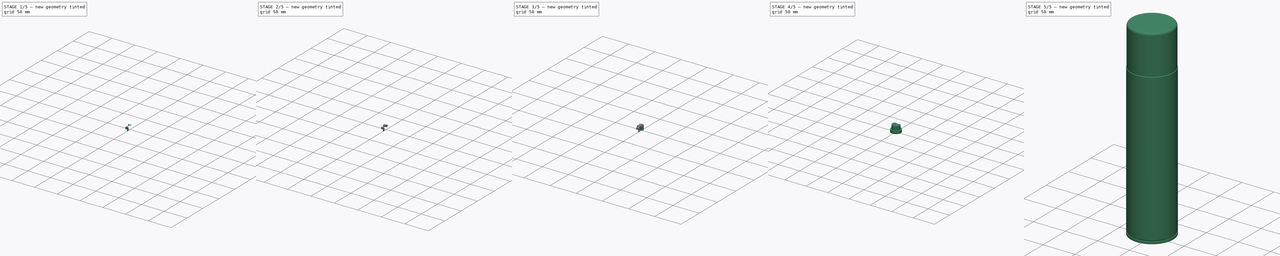
[diagram: build sequence overview — one tinted view per stage of 5, left to right]
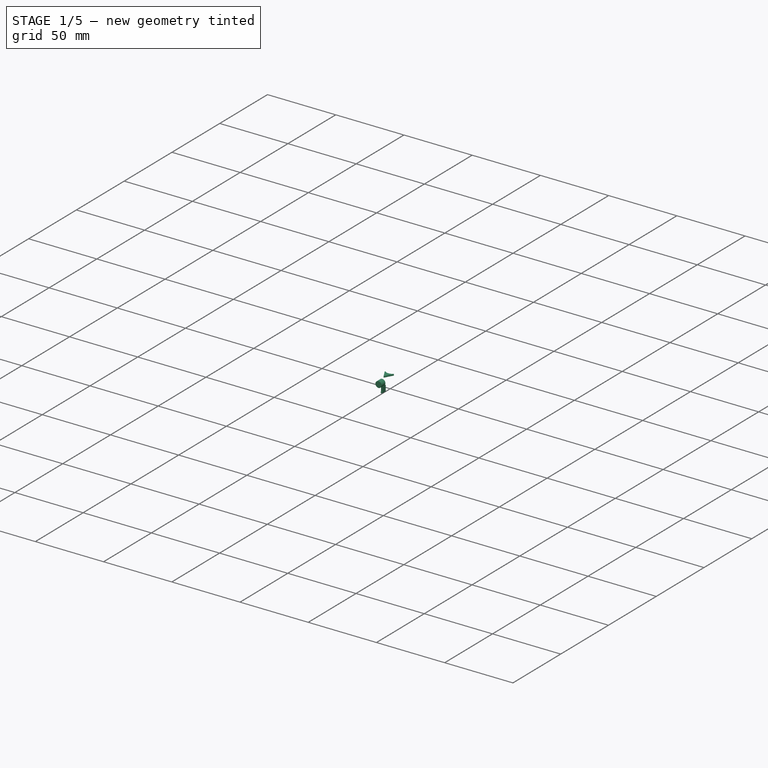
[diagram: stage 1 of 5 — iso view after this stage's code; geometry added in this stage tinted green]
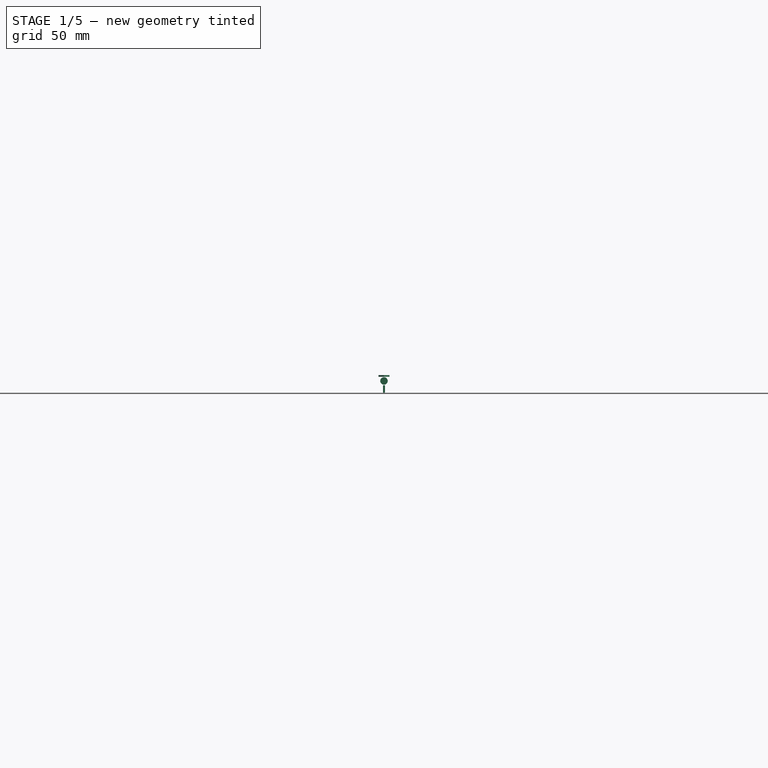
[diagram: stage 1 of 5 — front view after this stage's code; geometry added in this stage tinted green]
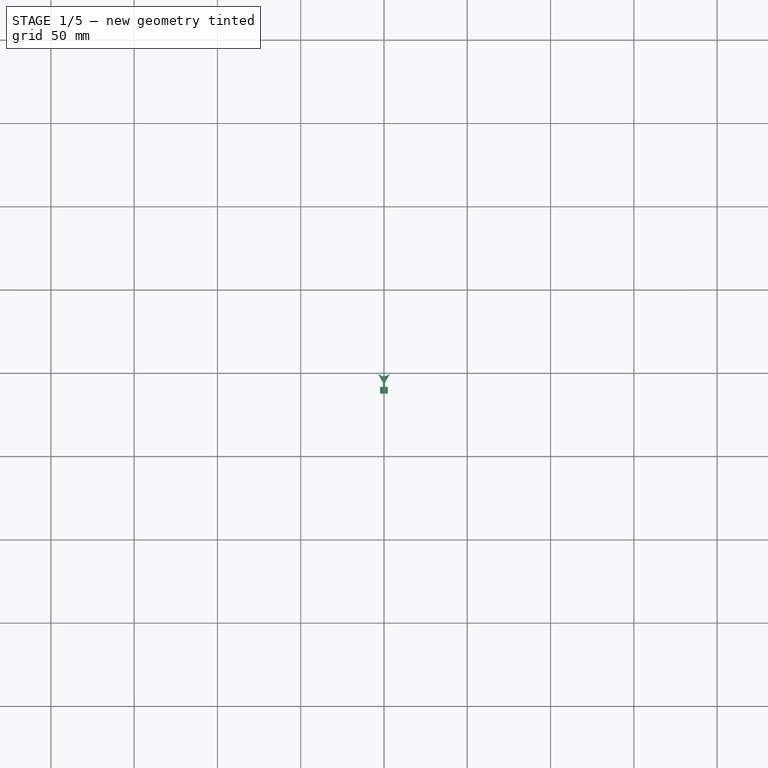
[diagram: stage 1 of 5 — top view after this stage's code; geometry added in this stage tinted green]
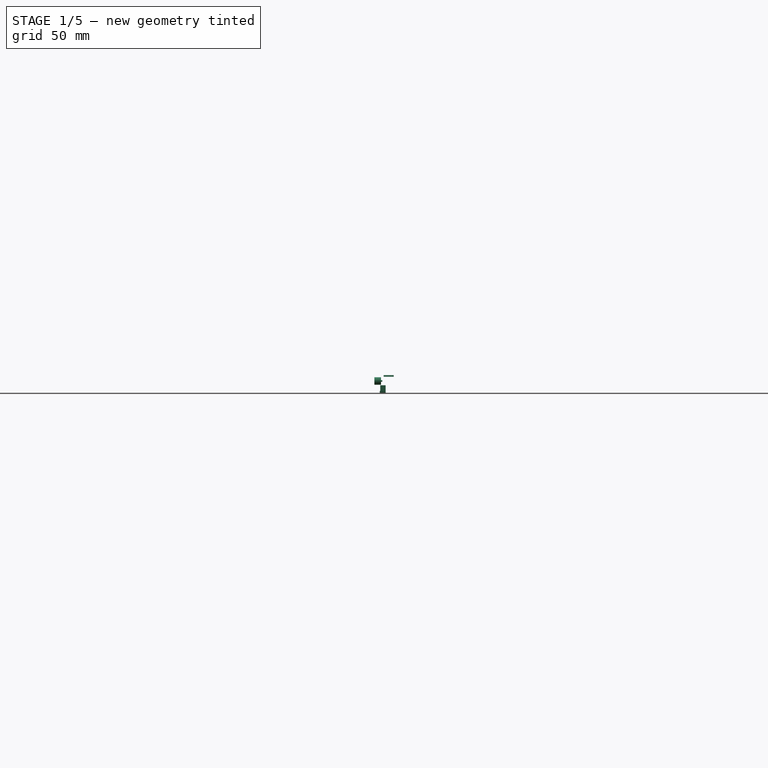
[diagram: stage 1 of 5 — right view after this stage's code; geometry added in this stage tinted green]
FCSTD DOCUMENT  (FreeCAD 0.16R6710 (Git))
Label: lac-can-600ml
License: All rights reserved
LicenseURL: http://en.wikipedia.org/wiki/All_rights_reserved
objects: Sketcher::SketchObject×7, Part::FeaturePython×7, Part::Cut×5, PartDesign::Revolution×4, Part::Cylinder×3, PartDesign::Pad×3, Part::Thickness×2, Part::MultiCommon×2, Part::MultiFuse×2, App::DocumentObjectGroup×2, Part::Box×1, Part::Fillet×1
note: 44 computed .brp shape members not serialized (recipe doc carries the construction recipe); baked Part::Feature solids carry a one-line shape summary decoded from their .brp

FEATURE [Sketcher::SketchObject] Sketch001
  Placement = pos=(0,0,0) rot=(1,0,0;1.5708rad)
  sketch-geometry (6):
    g0: LineSegment StartX=11.325 StartY=0 StartZ=0 EndX=11.325 EndY=6 EndZ=0
    g1: LineSegment StartX=11.325 StartY=6 StartZ=0 EndX=8.725 EndY=6 EndZ=0
    g2: LineSegment StartX=8.725 StartY=6 StartZ=0 EndX=8.725 EndY=15.5 EndZ=0
    g3: LineSegment StartX=8.725 StartY=15.5 StartZ=0 EndX=0 EndY=15.5 EndZ=0
    g4: LineSegment StartX=11.325 StartY=0 StartZ=0 EndX=0 EndY=0 EndZ=0
    g5: LineSegment StartX=0 StartY=0 StartZ=0 EndX=0 EndY=15.5 EndZ=0
  constraints (19):
    c: PointOnObject(g0,g-1)
    c: Vertical(g0)
    c: Coincident(g0,g1)
    c: Horizontal(g1)
    c: Coincident(g1,g2)
    c: Vertical(g2)
    c: Coincident(g2,g3)
    c: Horizontal(g3)
    c: PointOnObject(g3,g-2)
    c: DistanceX(g-1,g0) = 11.325
    c: DistanceX(g3,g3) = 8.725
    c: DistanceY(g0,g0) = 6
    c: DistanceY(g2,g2) = 9.5
    c: Coincident(g0,g4)
    c: PointOnObject(g4,g-1)
    c: Coincident(g5,g3)
    c: Vertical(g5)
    c: Coincident(g5,g-1)
    c: Coincident(g4,g-1)
FEATURE [PartDesign::Revolution] Revolution001
  Angle = 360
  Axis = (0,0,1)
  Base = (0,0,0)
  Placement = pos=(0,0,0) rot=(1,0,0;1.5708rad)
  ReferenceAxis = -> Sketch001 [V_Axis]
  Reversed = true
  Sketch = -> Sketch001
FEATURE [Sketcher::SketchObject] Sketch004
  Placement = pos=(0,-9,17.75) rot=(-1,0,0;1.5708rad)
  sketch-geometry (4):
    g0: ArcOfCircle CenterX=0 CenterY=12.3 CenterZ=0 NormalX=0 NormalY=0 NormalZ=1 Radius=0.625 StartAngle=1.51231e-05 EndAngle=3.14158
    g1: LineSegment StartX=0.625 StartY=12.3 StartZ=0 EndX=0.625 EndY=8.3 EndZ=0
    g2: LineSegment StartX=0.625 StartY=8.3 StartZ=0 EndX=-0.625 EndY=8.3 EndZ=0
    g3: LineSegment StartX=-0.625 StartY=8.3 StartZ=0 EndX=-0.625 EndY=12.3 EndZ=0
  constraints (13):
    c: PointOnObject(g0,g-2)
    c: Coincident(g1,g2)
    c: Coincident(g2,g3)
    c: Horizontal(g2)
    c: Vertical(g1)
    c: Vertical(g3)
    c: Coincident(g0,g3)
    c: Coincident(g0,g1)
    c: DistanceY(g-1,g1) = 8.3
    c: Equal(g3,g1)
    c: Tangent(g3,g0)
    c: Radius(g0) = 0.625
    c: DistanceY(g3,g3) = 4
FEATURE [PartDesign::Pad] Pad001
  Length = 3.5
  Length2 = 100
  Placement = pos=(0,-9,17.75) rot=(-1,0,0;1.5708rad)
  Sketch = -> Sketch004
  Type = 0
FEATURE [Part::FeaturePython] Clone003  label="Clone of Revolution002"  # Draft clone (typed FeaturePython)
  Objects = -> [Revolution001]
  Placement = pos=(0,0,0) rot=(1,0,0;1.5708rad)
  Scale = (1,1,1)
FEATURE [Part::MultiCommon] Common001
  Shapes = -> [Clone003,Pad001]
FEATURE [Sketcher::SketchObject] Sketch005
  Placement = pos=(0,0,15.5) rot=(0,0,1;0rad)
  sketch-geometry (6):
    g0: ArcOfCircle CenterX=0 CenterY=-6.5 CenterZ=0 NormalX=0 NormalY=0 NormalZ=1 Radius=0.2 StartAngle=3.65064 EndAngle=5.77413
    g1: LineSegment StartX=0.174641 StartY=-6.59747 StartZ=0 EndX=3.3 EndY=-0.99747 EndZ=0
    g2: LineSegment StartX=-0.174641 StartY=-6.59747 StartZ=0 EndX=-3.3 EndY=-0.99747 EndZ=0
    g3: ArcOfCircle CenterX=-3.12536 CenterY=-0.900002 CenterZ=0 NormalX=0 NormalY=0 NormalZ=1 Radius=0.2 StartAngle=0.858135 EndAngle=3.65063
    g4: ArcOfCircle CenterX=3.12536 CenterY=-0.900002 CenterZ=0 NormalX=0 NormalY=0 NormalZ=1 Radius=0.2 StartAngle=5.77414 EndAngle=8.56664
    g5: ArcOfCircle CenterX=0 CenterY=2.71661 CenterZ=0 NormalX=0 NormalY=0 NormalZ=1 Radius=4.57993 StartAngle=3.99973 EndAngle=5.42505
  constraints (22):
    c: Coincident(g3,g2)
    c: Coincident(g4,g1)
    c: Equal(g4,g3)
    c: Equal(g3,g0)
    c: Tangent(g4,g1)
    c: Tangent(g2,g3)
    c: Tangent(g2,g0)
    c: Tangent(g0,g1)
    c: PointOnObject(g5,g-2)
    c: Coincident(g5,g3)
    c: Coincident(g5,g4)
    c: Tangent(g5,g4)
    c: Tangent(g5,g3)
    c: Coincident(g2,g0)
    c: Coincident(g1,g0)
    c: Radius(g0) = 0.2
    c: PointOnObject(g0,g-2)
    c: DistanceX(g2,g1) = 6.6
    c: DistanceY(g1,g1) = 5.6
    c: Symmetric(g3,g4,g-2)
    c: Symmetric(g0,g0,g-2)
    c: DistanceY(g0,g-1) = 6.5
FEATURE [PartDesign::Pad] Pad002
  Length = 1
  Length2 = 100
  Placement = pos=(0,0,15.5) rot=(0,0,1;0rad)
  Reversed = true
  Sketch = -> Sketch005
  Type = 0
FEATURE [Sketcher::SketchObject] Sketch006
  Placement = pos=(0,-12.25,12) rot=(0.57735,0.57735,0.57735;2.0944rad)
  sketch-geometry (10):
    g0: LineSegment StartX=0 StartY=2.25 StartZ=0 EndX=4 EndY=2.25 EndZ=0
    g1: LineSegment StartX=4 StartY=2.25 StartZ=0 EndX=4 EndY=2 EndZ=0
    g2: LineSegment StartX=4 StartY=2 StartZ=0 EndX=3.5 EndY=2 EndZ=0
    g3: LineSegment StartX=3.5 StartY=2 StartZ=0 EndX=3.5 EndY=1.5 EndZ=0
    g4: LineSegment StartX=3.5 StartY=1.5 StartZ=0 EndX=3.75 EndY=1.5 EndZ=0
    g5: LineSegment StartX=3.75 StartY=1.5 StartZ=0 EndX=3.75 EndY=0.5 EndZ=0
    g6: LineSegment StartX=3.75 StartY=0.5 StartZ=0 EndX=4.75 EndY=0.5 EndZ=0
    g7: LineSegment StartX=4.75 StartY=0.5 StartZ=0 EndX=4.75 EndY=0 EndZ=0
    g8: LineSegment StartX=0 StartY=2.25 StartZ=0 EndX=0 EndY=0 EndZ=0
    g9: LineSegment StartX=0 StartY=0 StartZ=0 EndX=4.75 EndY=0 EndZ=0
  constraints (29):
    c: PointOnObject(g0,g-2)
    c: Horizontal(g0)
    c: Coincident(g0,g1)
    c: Coincident(g1,g2)
    c: Horizontal(g2)
    c: Coincident(g2,g3)
    c: Vertical(g3)
    c: Coincident(g3,g4)
    c: Coincident(g4,g5)
    c: Coincident(g5,g6)
    c: Horizontal(g6)
    c: Coincident(g6,g7)
    c: PointOnObject(g7,g-1)
    c: Vertical(g7)
    c: Vertical(g1)
    c: DistanceX(g0,g0) = 4
    c: DistanceX(g2,g2) = 0.5
    c: DistanceY(g3,g3) = 0.5
    c: Horizontal(g4)
    c: Vertical(g5)
    c: DistanceX(g4,g4) = 0.25
    c: DistanceY(g5,g5) = 1
    c: DistanceY(g1,g1) = 0.25
    c: DistanceY(g-1,g0) = 2.25
    c: DistanceX(g6,g6) = 1
    c: Coincident(g0,g8)
    c: Coincident(g8,g-1)
    c: Coincident(g8,g9)
    c: Coincident(g9,g7)
FEATURE [PartDesign::Revolution] Revolution003
  Angle = 360
  Axis = (0,1,0)
  Base = (0,-12.25,12)
  Placement = pos=(0,-12.25,12) rot=(0.57735,0.57735,0.57735;2.0944rad)
  ReferenceAxis = -> Sketch006 [H_Axis]
  Sketch = -> Sketch006
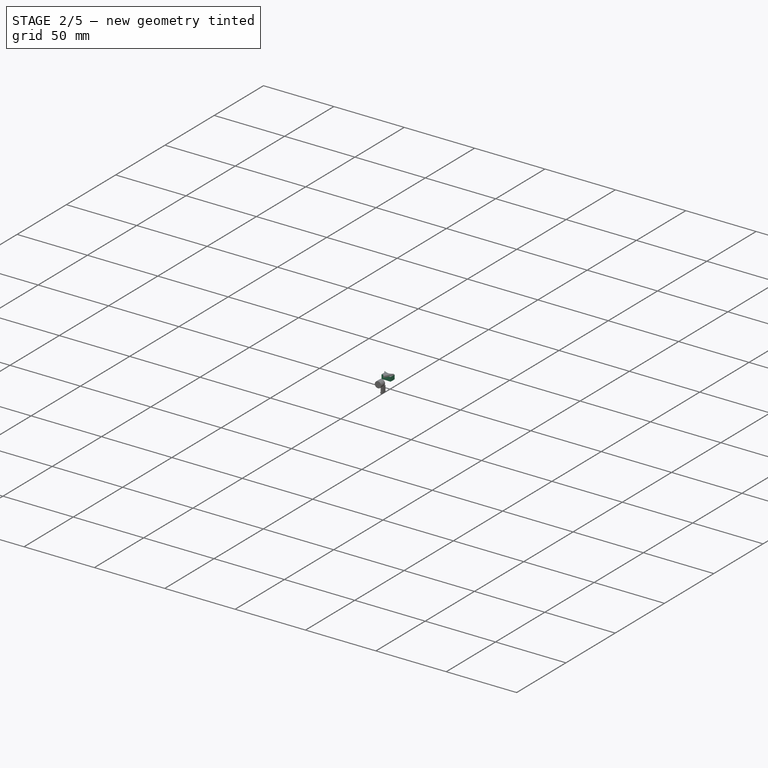
[diagram: stage 2 of 5 — iso view after this stage's code; geometry added in this stage tinted green]
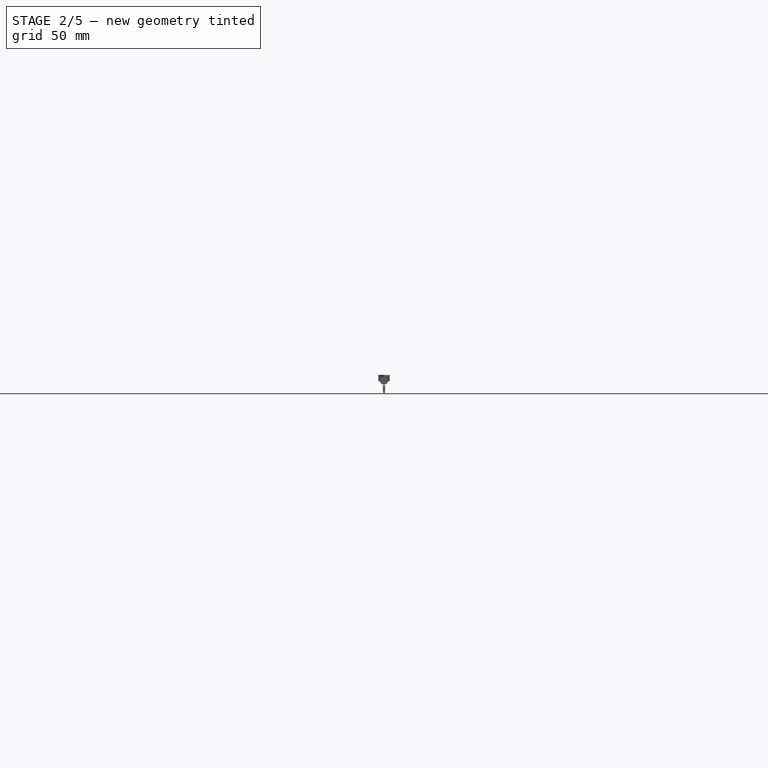
[diagram: stage 2 of 5 — front view after this stage's code; geometry added in this stage tinted green]
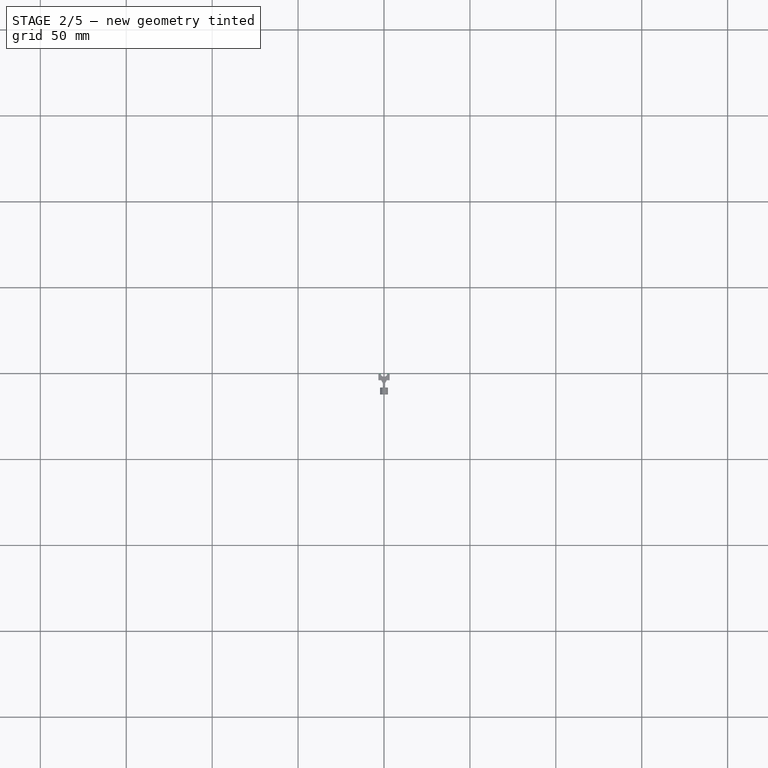
[diagram: stage 2 of 5 — top view after this stage's code; geometry added in this stage tinted green]
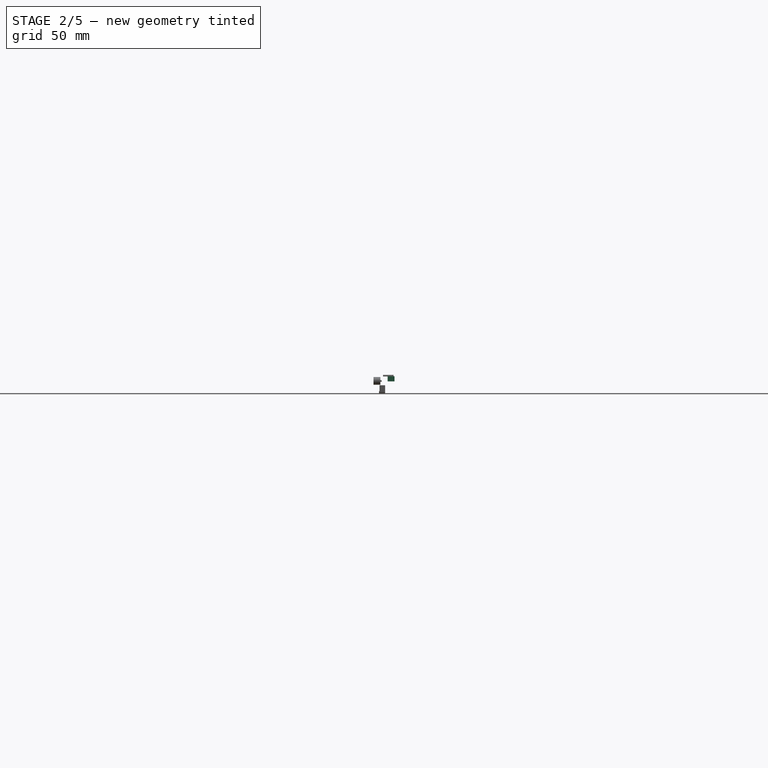
[diagram: stage 2 of 5 — right view after this stage's code; geometry added in this stage tinted green]
FEATURE [Part::Cylinder] Cylinder
  Angle = 360
  Height = 25
  Placement = pos=(0,14,22) rot=(1,0,0;1.39626rad)
  Radius = 10
FEATURE [Part::Box] Box  label="Cube"
  Height = 3
  Length = 6.5
  Placement = pos=(-3.25,-4,11.7) rot=(0,0,1;0rad)
  Width = 4
FEATURE [Part::Cylinder] Cylinder001
  Angle = 360
  Height = 10
  Placement = pos=(0,0,7) rot=(0,0,1;0rad)
  Radius = 2
FEATURE [Part::FeaturePython] Clone002  label="Clone of Cylinder001"  # Draft clone (typed FeaturePython)
  Objects = -> [Cylinder]
  Placement = pos=(0,14,22) rot=(1,0,0;1.39626rad)
  Scale = (1,1,1)
FEATURE [Part::MultiFuse] Fusion
  Shapes = -> [Clone002,Cylinder001]
FEATURE [Part::Cut] Cut002
  Base = -> Box
  Tool = -> Fusion
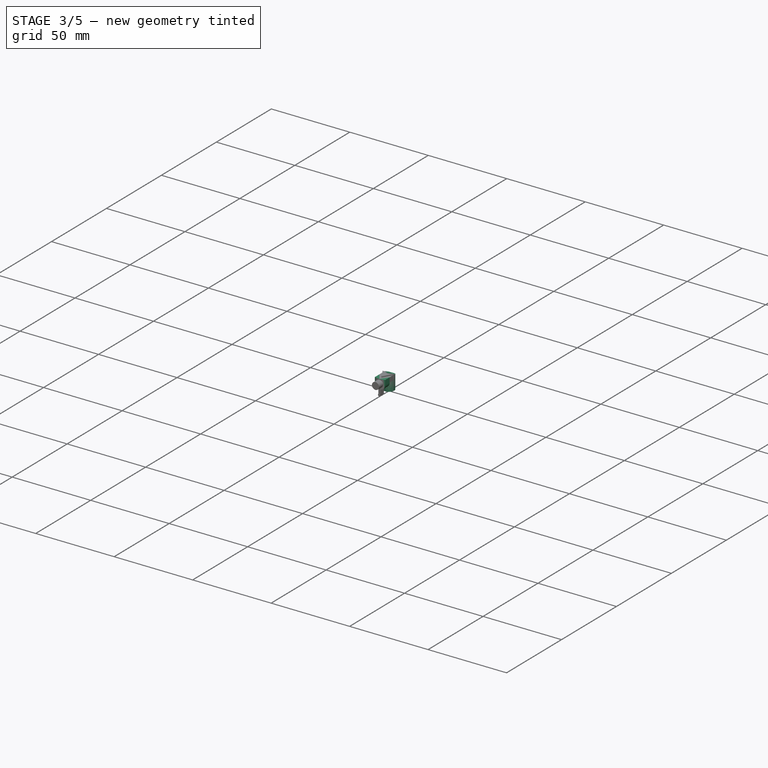
[diagram: stage 3 of 5 — iso view after this stage's code; geometry added in this stage tinted green]
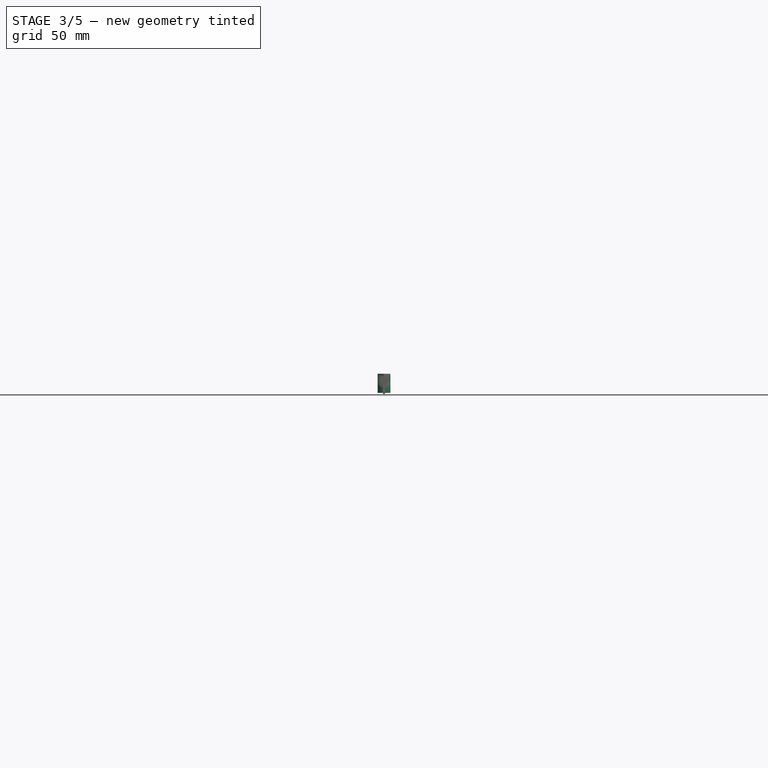
[diagram: stage 3 of 5 — front view after this stage's code; geometry added in this stage tinted green]
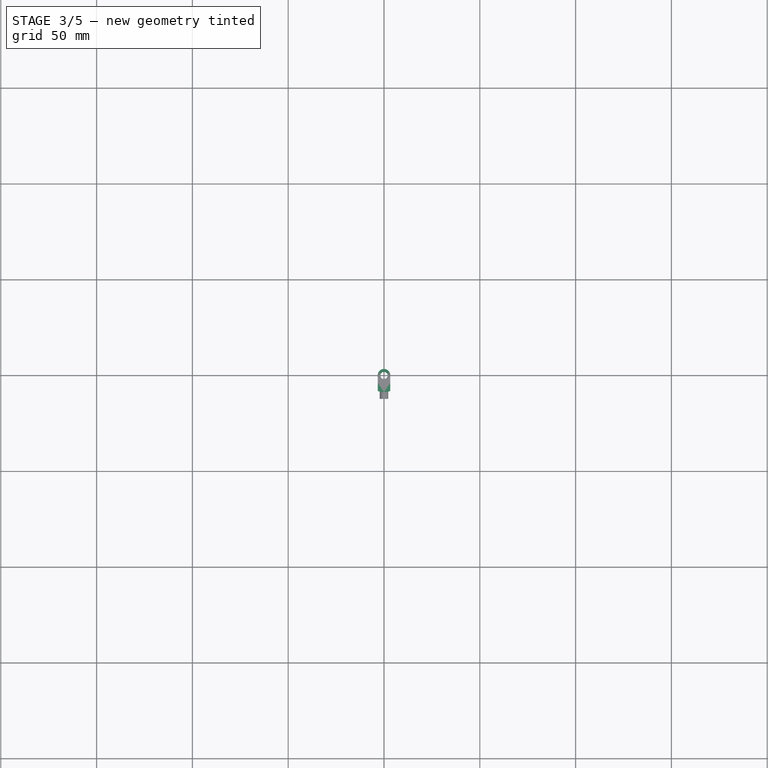
[diagram: stage 3 of 5 — top view after this stage's code; geometry added in this stage tinted green]
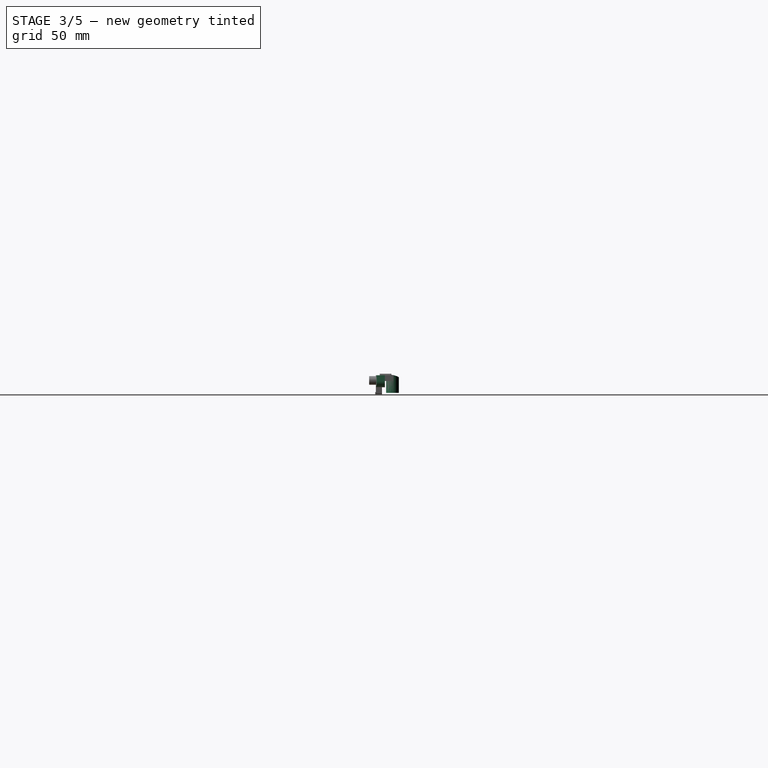
[diagram: stage 3 of 5 — right view after this stage's code; geometry added in this stage tinted green]
FEATURE [Sketcher::SketchObject] Sketch002
  Placement = pos=(0,0,0) rot=(1,0,0;1.5708rad)
  sketch-geometry (4):
    g0: LineSegment StartX=3.325 StartY=15.5 StartZ=0 EndX=3.325 EndY=5.5 EndZ=0
    g1: LineSegment StartX=3.325 StartY=5.5 StartZ=0 EndX=1.925 EndY=7.49941 EndZ=0
    g2: LineSegment StartX=1.925 StartY=7.49941 StartZ=0 EndX=1.925 EndY=15.5 EndZ=0
    g3: LineSegment StartX=1.925 StartY=15.5 StartZ=0 EndX=3.325 EndY=15.5 EndZ=0
  constraints (12):
    c: Vertical(g0)
    c: Coincident(g0,g1)
    c: Coincident(g1,g2)
    c: Vertical(g2)
    c: Coincident(g2,g3)
    c: Coincident(g0,g3)
    c: Angle(g0,g1) = 0.610865
    c: DistanceX(g3,g3) = 1.4
    c: DistanceX(g-1,g1) = 1.925
    c: Horizontal(g3)
    c: DistanceY(g-1,g2) = 15.5
    c: DistanceY(g-1,g0) = 5.5
FEATURE [PartDesign::Revolution] Revolution002
  Angle = 360
  Axis = (0,0,1)
  Base = (0,0,0)
  Placement = pos=(0,0,0) rot=(1,0,0;1.5708rad)
  ReferenceAxis = -> Sketch002 [V_Axis]
  Reversed = true
  Sketch = -> Sketch002
FEATURE [Part::FeaturePython] Clone  label="Clone of Cylinder"  # Draft clone (typed FeaturePython)
  Objects = -> [Cylinder]
  Placement = pos=(0,14,22) rot=(1,0,0;1.39626rad)
  Scale = (1,1,1)
FEATURE [Part::Cut] Cut001
  Base = -> Revolution002
  Tool = -> Clone
FEATURE [Sketcher::SketchObject] Sketch003
  Placement = pos=(0,-9,23) rot=(-1,0,0;1.5708rad)
  sketch-geometry (4):
    g0: ArcOfCircle CenterX=0 CenterY=11.3 CenterZ=0 NormalX=0 NormalY=0 NormalZ=1 Radius=3.25 StartAngle=6.28318 EndAngle=9.42478
    g1: LineSegment StartX=3.25 StartY=11.3 StartZ=0 EndX=3.25 EndY=8.3 EndZ=0
    g2: LineSegment StartX=3.25 StartY=8.3 StartZ=0 EndX=-3.25 EndY=8.3 EndZ=0
    g3: LineSegment StartX=-3.25 StartY=8.3 StartZ=0 EndX=-3.25 EndY=11.3 EndZ=0
  constraints (13):
    c: PointOnObject(g0,g-2)
    c: Coincident(g1,g2)
    c: Coincident(g2,g3)
    c: Horizontal(g2)
    c: Vertical(g1)
    c: Vertical(g3)
    c: Coincident(g0,g3)
    c: Coincident(g0,g1)
    c: DistanceY(g-1,g1) = 8.3
    c: Equal(g3,g1)
    c: Tangent(g3,g0)
    c: Radius(g0) = 3.25
    c: DistanceY(g3,g3) = 3
FEATURE [PartDesign::Pad] Pad
  Length = 5
  Length2 = 100
  Placement = pos=(0,-9,23) rot=(-1,0,0;1.5708rad)
  Sketch = -> Sketch003
  Type = 0
FEATURE [Part::FeaturePython] Clone001  label="Clone of Revolution001"  # Draft clone (typed FeaturePython)
  Objects = -> [Revolution001]
  Placement = pos=(0,0,0) rot=(1,0,0;1.5708rad)
  Scale = (1,1,1)
FEATURE [Part::MultiCommon] Common
  Shapes = -> [Pad,Clone001]
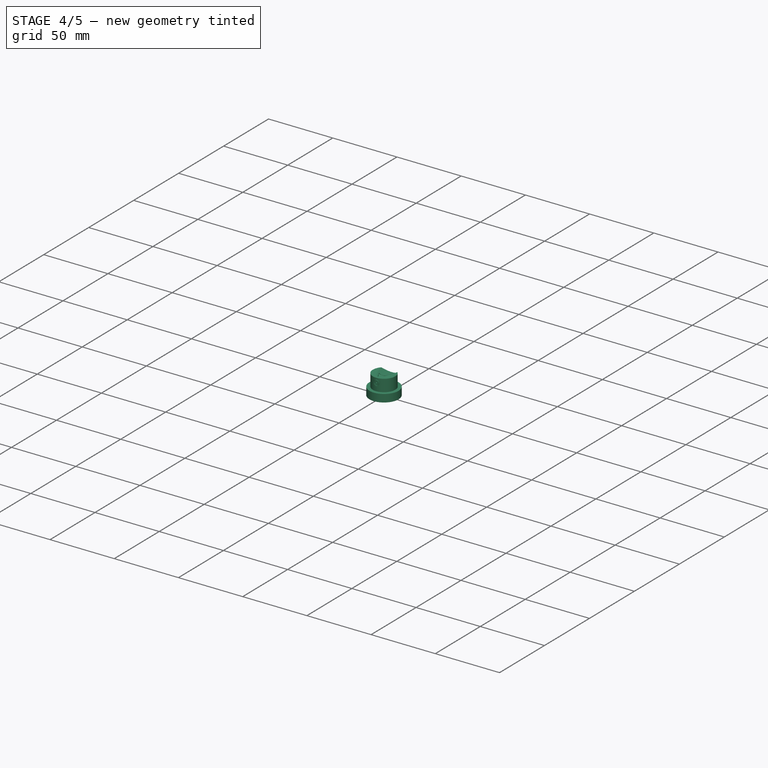
[diagram: stage 4 of 5 — iso view after this stage's code; geometry added in this stage tinted green]
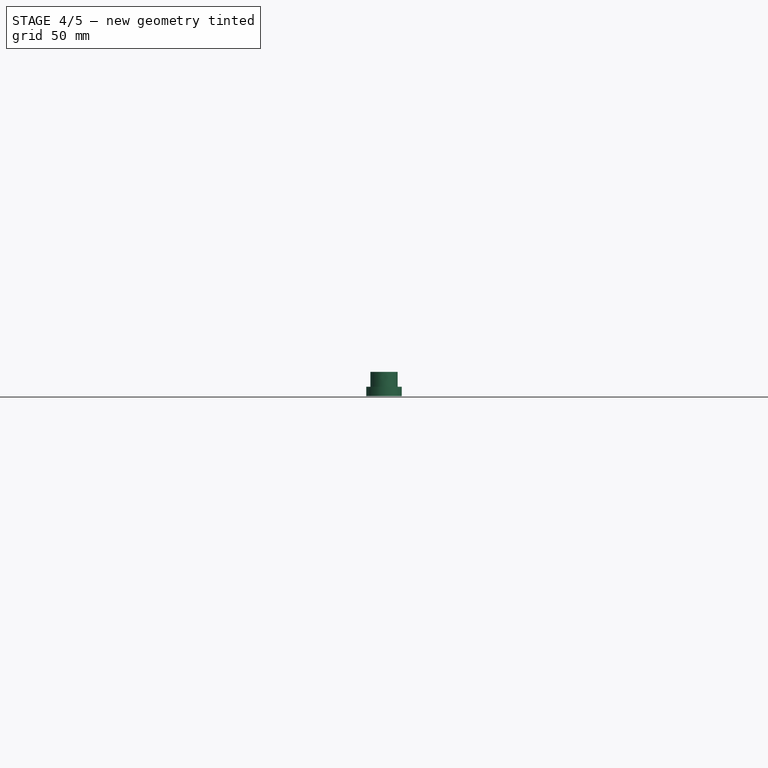
[diagram: stage 4 of 5 — front view after this stage's code; geometry added in this stage tinted green]
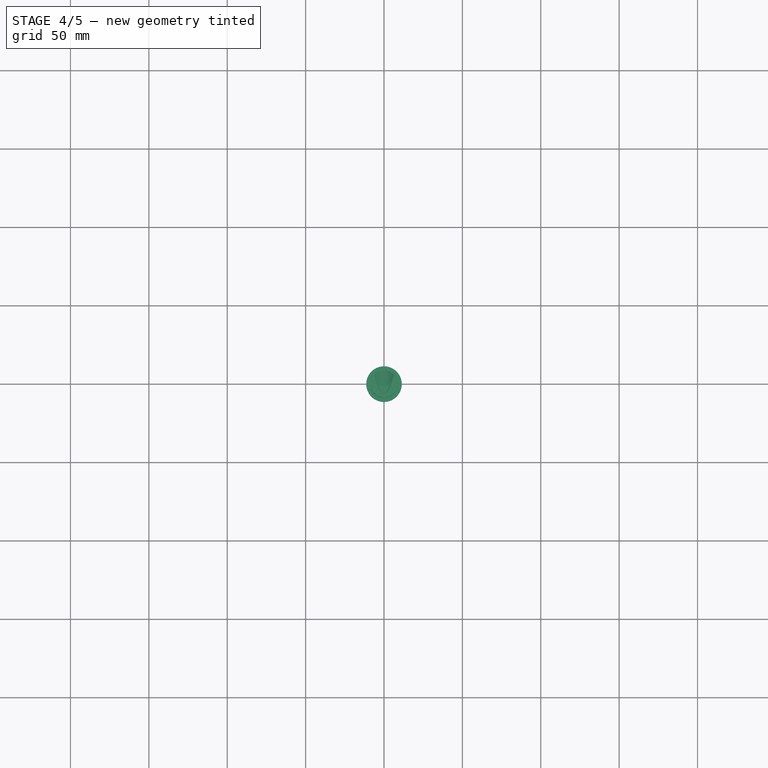
[diagram: stage 4 of 5 — top view after this stage's code; geometry added in this stage tinted green]
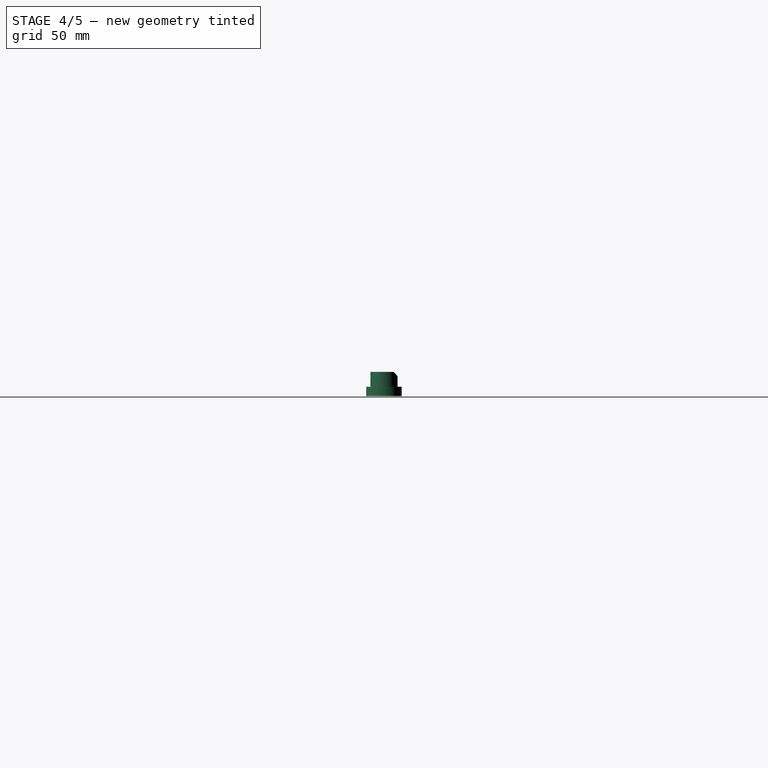
[diagram: stage 4 of 5 — right view after this stage's code; geometry added in this stage tinted green]
FEATURE [Part::Cut] Cut
  Base = -> Revolution001
  Tool = -> Cylinder
FEATURE [Part::Thickness] Thickness
  Faces = -> Cut [Face2]
  Intersection = false
  Join = 0
  Mode = 0
  SelfIntersection = false
  Value = -1.2
FEATURE [Part::MultiFuse] Fusion001
  Shapes = -> [Common001,Cut002,Cut001,Common,Thickness]
FEATURE [Part::Cut] Cut003
  Base = -> Fusion001
  Tool = -> Pad002
FEATURE [Part::Cut] Cut004  label="Nozzle"
  Base = -> Cut003
  Tool = -> Revolution003
FEATURE [App::DocumentObjectGroup] Group  label="Master"
  Group = -> [Revolution,Thickness001,Cut004]
FEATURE [Part::FeaturePython] Clone007  label="Clone of Nozzle"  # Draft clone (typed FeaturePython)
  Objects = -> [Cut004]
  Placement = pos=(0,0,255) rot=(0,0,1;0rad)
  Scale = (1,1,1)
FEATURE [App::DocumentObjectGroup] Group001  label="Assembly"
  Group = -> [Clone004,Clone006,Clone007]
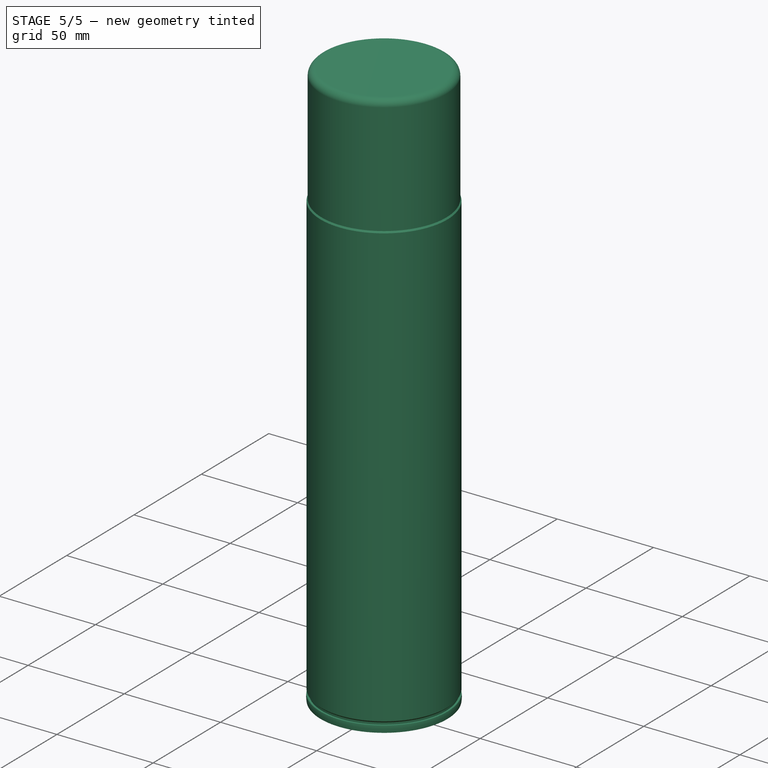
[diagram: stage 5 of 5 — iso view after this stage's code; geometry added in this stage tinted green]
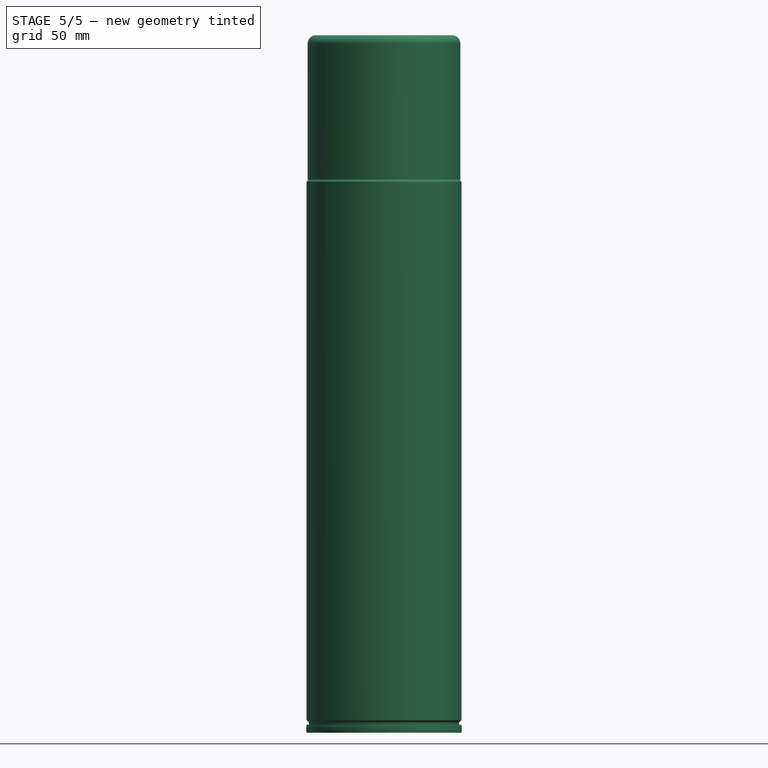
[diagram: stage 5 of 5 — front view after this stage's code; geometry added in this stage tinted green]
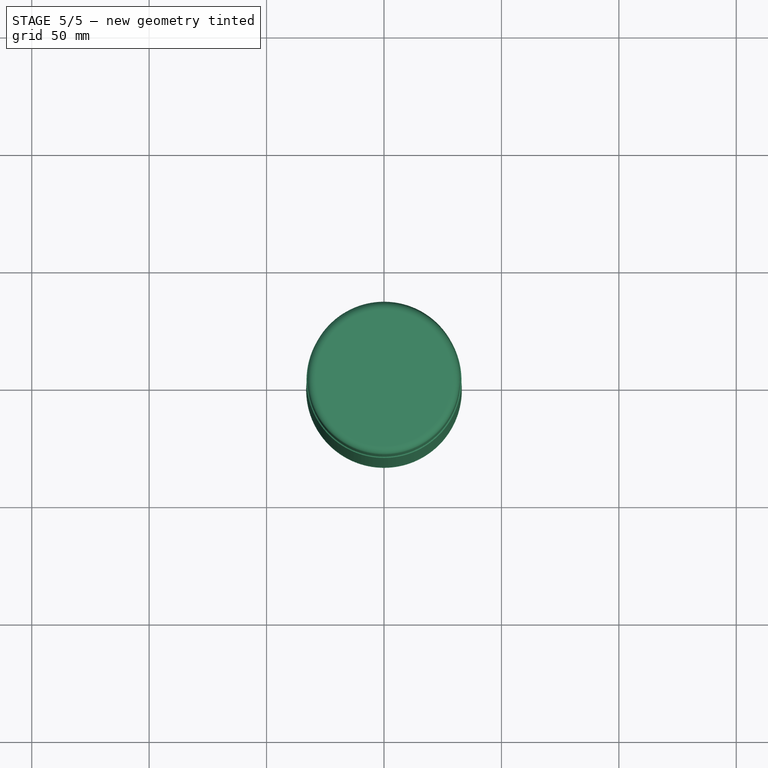
[diagram: stage 5 of 5 — top view after this stage's code; geometry added in this stage tinted green]
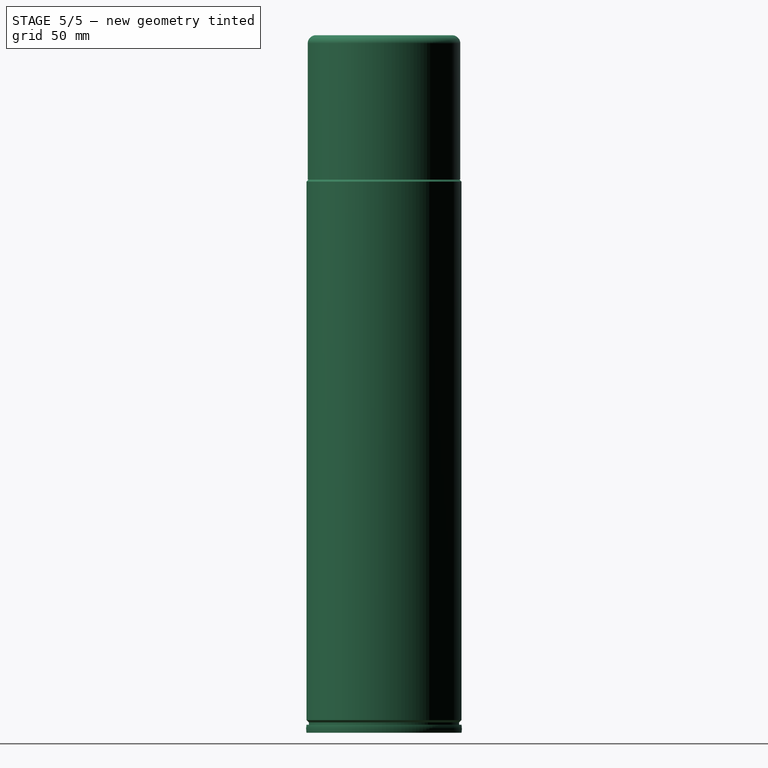
[diagram: stage 5 of 5 — right view after this stage's code; geometry added in this stage tinted green]
FEATURE [Sketcher::SketchObject] Sketch
  Placement = pos=(0,0,0) rot=(0.57735,0.57735,0.57735;2.0944rad)
  sketch-geometry (29):
    g0: LineSegment StartX=33 StartY=5.4 StartZ=0 EndX=33 EndY=234.65 EndZ=0
    g1: ArcOfCircle CenterX=23.1456 CenterY=1.7 CenterZ=0 NormalX=0 NormalY=0 NormalZ=1 Radius=10 StartAngle=6.11236 EndAngle=6.45401
    g2: LineSegment [constr] StartX=33 StartY=3.4 StartZ=0 EndX=33 EndY=0 EndZ=0
    g3: LineSegment StartX=33 StartY=3.4 StartZ=0 EndX=32 EndY=3.4 EndZ=0
    g4: LineSegment StartX=32 StartY=3.4 StartZ=0 EndX=32 EndY=4.4 EndZ=0
    g5: LineSegment StartX=32 StartY=4.4 StartZ=0 EndX=33 EndY=5.4 EndZ=0
    g6: LineSegment StartX=33 StartY=234.65 StartZ=0 EndX=30.65 EndY=237 EndZ=0
    g7: LineSegment StartX=30.65 StartY=237 StartZ=0 EndX=30.65 EndY=238 EndZ=0
    g8: LineSegment StartX=30.65 StartY=238 StartZ=0 EndX=31.65 EndY=238 EndZ=0
    g9: ArcOfCircle CenterX=21.7001 CenterY=239 CenterZ=0 NormalX=0 NormalY=0 NormalZ=1 Radius=10 StartAngle=6.18302 EndAngle=6.38335
    g10: ArcOfCircle CenterX=30.655 CenterY=239.9 CenterZ=0 NormalX=0 NormalY=0 NormalZ=1 Radius=1 StartAngle=0.100167 EndAngle=3.14159
    g11: LineSegment [constr] StartX=31.65 StartY=240 StartZ=0 EndX=31.65 EndY=238 EndZ=0
    g12: LineSegment StartX=29.655 StartY=239.9 StartZ=0 EndX=29.655 EndY=238.9 EndZ=0
    g13: ArcOfCircle CenterX=28.655 CenterY=238.9 CenterZ=0 NormalX=0 NormalY=0 NormalZ=1 Radius=1 StartAngle=3.55778 EndAngle=6.28319
    g14: ArcOfCircle CenterX=0 CenterY=226.234 CenterZ=0 NormalX=0 NormalY=0 NormalZ=1 Radius=30.3294 StartAngle=0.416186 EndAngle=1.01509
    g15: LineSegment StartX=16 StartY=252 StartZ=0 EndX=14.5 EndY=253.5 EndZ=0
    g16: LineSegment StartX=14.5 StartY=253.5 StartZ=0 EndX=16.25 EndY=253.5 EndZ=0
    g17: LineSegment StartX=16.25 StartY=253.5 StartZ=0 EndX=16.25 EndY=255 EndZ=0
    g18: ArcOfCircle CenterX=14.25 CenterY=255 CenterZ=0 NormalX=0 NormalY=0 NormalZ=1 Radius=2 StartAngle=6.28318 EndAngle=9.42478
    g19: LineSegment StartX=12.25 StartY=255 StartZ=0 EndX=12.25 EndY=248.5 EndZ=0
    g20: LineSegment StartX=12.25 StartY=248.5 StartZ=0 EndX=6.4 EndY=249.4 EndZ=0
    g21: LineSegment StartX=6.4 StartY=249.4 StartZ=0 EndX=6.4 EndY=254.9 EndZ=0
    g22: LineSegment StartX=6.4 StartY=254.9 StartZ=0 EndX=2 EndY=254.9 EndZ=0
    g23: LineSegment StartX=2 StartY=254.9 StartZ=0 EndX=2 EndY=262.875 EndZ=0
    g24: LineSegment StartX=0.875 StartY=264 StartZ=0 EndX=0.875 EndY=254 EndZ=0
    g25: LineSegment StartX=0.875 StartY=254 StartZ=0 EndX=0 EndY=254 EndZ=0
    g26: LineSegment StartX=0 StartY=254 StartZ=0 EndX=0 EndY=0 EndZ=0
    g27: ArcOfCircle CenterX=0.875 CenterY=262.875 CenterZ=0 NormalX=0 NormalY=0 NormalZ=1 Radius=1.125 StartAngle=1.13747e-05 EndAngle=1.5708
    g28: LineSegment StartX=0 StartY=0 StartZ=0 EndX=33 EndY=0 EndZ=0
  constraints (91):
    c: Vertical(g0)
    c: DistanceX(g-1,g0) = 33
    c: PointOnObject(g1,g-1)
    c: Coincident(g2,g1)
    c: Coincident(g1,g2)
    c: Vertical(g2)
    c: DistanceY(g2,g2) = 3.4
    c: Coincident(g3,g1)
    c: Horizontal(g3)
    c: Coincident(g4,g3)
    c: Vertical(g4)
    c: Coincident(g5,g4)
    c: DistanceX(g-1,g1) = 33
    c: Radius(g1) = 10
    c: DistanceX(g3,g3) = 1
    c: DistanceY(g4,g4) = 1
    c: Coincident(g5,g0)
    c: Angle(g4,g5) = 2.35619
    c: Coincident(g0,g6)
    c: Coincident(g6,g7)
    c: Vertical(g7)
    c: Coincident(g7,g8)
    c: Horizontal(g8)
    c: Coincident(g9,g8)
    c: Coincident(g10,g9)
    c: DistanceX(g-1,g8) = 31.65
    c: Angle(g6,g0) = 2.35619
    c: DistanceY(g7,g7) = 1
    c: DistanceX(g8,g8) = 1
    c: Tangent(g9,g10)
    c: Coincident(g11,g9)
    c: Coincident(g11,g8)
    c: Vertical(g11)
    c: DistanceY(g11,g11) = 2
    c: Radius(g10) = 1
    c: Coincident(g12,g10)
    c: Vertical(g12)
    c: Tangent(g12,g10)
    c: Coincident(g14,g13)
    c: Tangent(g13,g14)
    c: Tangent(g13,g12)
    c: Coincident(g13,g12)
    c: Radius(g13) = 1
    c: DistanceY(g12,g12) = 1
    c: DistanceY(g-1,g9) = 240
    c: PointOnObject(g14,g-2)
    c: DistanceY(g-1,g14) = 252
    c: DistanceX(g-1,g14) = 16
    c: Radius(g9) = 10
    c: Coincident(g15,g14)
    c: Angle(g15,g-2) = 2.35619
    c: Coincident(g16,g15)
    c: Horizontal(g16)
    c: Coincident(g17,g16)
    c: Vertical(g17)
    c: Coincident(g18,g17)
    c: DistanceX(g-1,g15) = 14.5
    c: DistanceX(g-1,g16) = 16.25
    c: DistanceY(g17,g17) = 1.5
    c: Radius(g18) = 2
    c: Coincident(g19,g18)
    c: Vertical(g19)
    c: Tangent(g18,g17)
    c: Tangent(g19,g18)
    c: DistanceY(g19,g19) = 6.5
    c: Coincident(g20,g19)
    c: DistanceX(g-1,g20) = 6.4
    c: Coincident(g21,g20)
    c: Vertical(g21)
    c: DistanceY(g21,g21) = 5.5
    c: Coincident(g22,g21)
    c: Horizontal(g22)
    c: Coincident(g23,g22)
    c: Vertical(g23)
    c: Vertical(g24)
    c: Coincident(g24,g25)
    c: PointOnObject(g25,g-2)
    c: Coincident(g25,g26)
    c: Coincident(g26,g-1)
    c: Horizontal(g25)
    c: DistanceX(g25,g22) = 2
    c: Coincident(g27,g23)
    c: Coincident(g27,g24)
    c: PointOnObject(g27,g24)
    c: Tangent(g27,g23)
    c: DistanceX(g25,g24) = 0.875
    c: DistanceY(g22,g24) = 9.1
    c: DistanceY(g24,g24) = 10
    c: DistanceY(g-1,g24) = 264
    c: Coincident(g28,g-1)
    c: Coincident(g28,g1)
FEATURE [PartDesign::Revolution] Revolution  label="Bottle"
  Angle = 360
  Axis = (0,0,1)
  Base = (0,0,0)
  Placement = pos=(0,0,0) rot=(0.57735,0.57735,0.57735;2.0944rad)
  ReferenceAxis = -> Sketch [V_Axis]
  Reversed = true
  Sketch = -> Sketch
FEATURE [Part::Cylinder] Cylinder002
  Angle = 360
  Height = 61.5
  Radius = 32.5
FEATURE [Part::Fillet] Fillet
  Base = -> Cylinder002
  Edges = 1 edges r=3.5: [Edge1]
FEATURE [Part::Thickness] Thickness001  label="Cap"
  Faces = -> Fillet [Face3]
  Intersection = false
  Join = 0
  Mode = 0
  SelfIntersection = false
  Value = -1
FEATURE [Part::FeaturePython] Clone004  label="Clone of Bottle"  # Draft clone (typed FeaturePython)
  Objects = -> [Revolution]
  Placement = pos=(0,0,0) rot=(0.57735,0.57735,0.57735;2.0944rad)
  Scale = (1,1,1)
FEATURE [Part::FeaturePython] Clone006  label="Clone of Cap"  # Draft clone (typed FeaturePython)
  Objects = -> [Thickness001]
  Placement = pos=(0,0,235.5) rot=(0,0,1;0rad)
  Scale = (1,1,1)
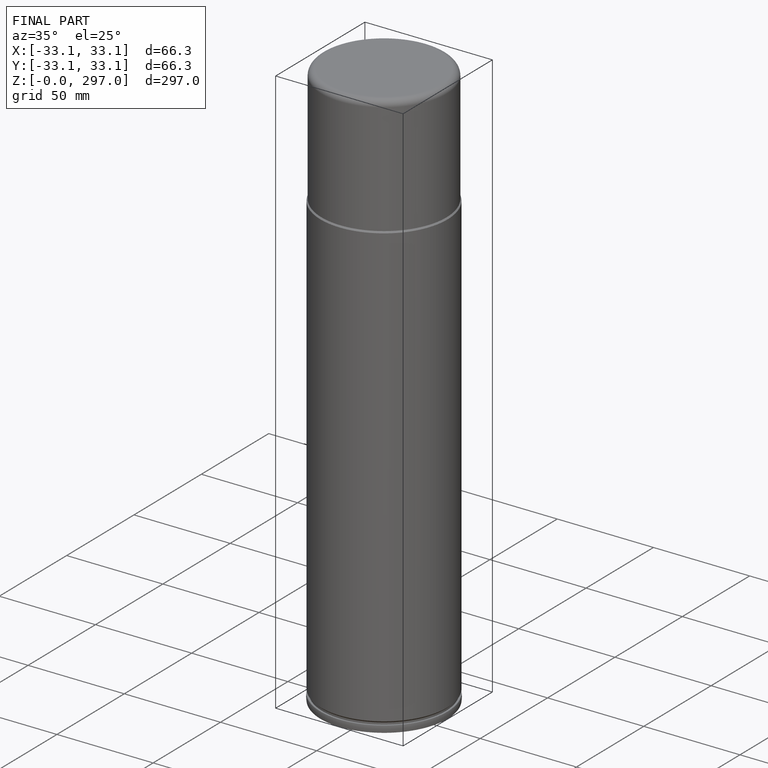
[diagram: finished part — iso view with bounding-box wireframe]
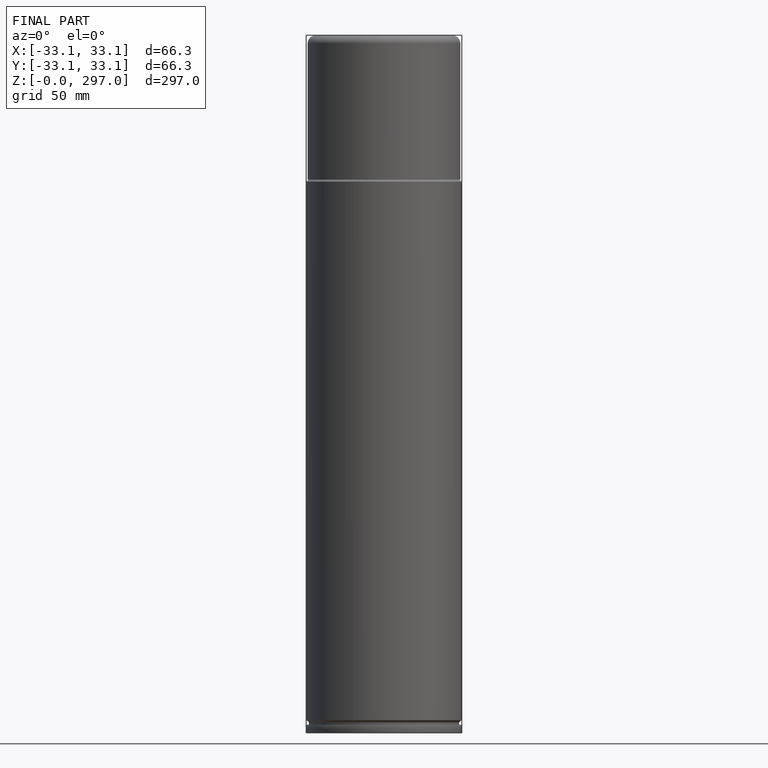
[diagram: finished part — front view with bounding-box wireframe]
